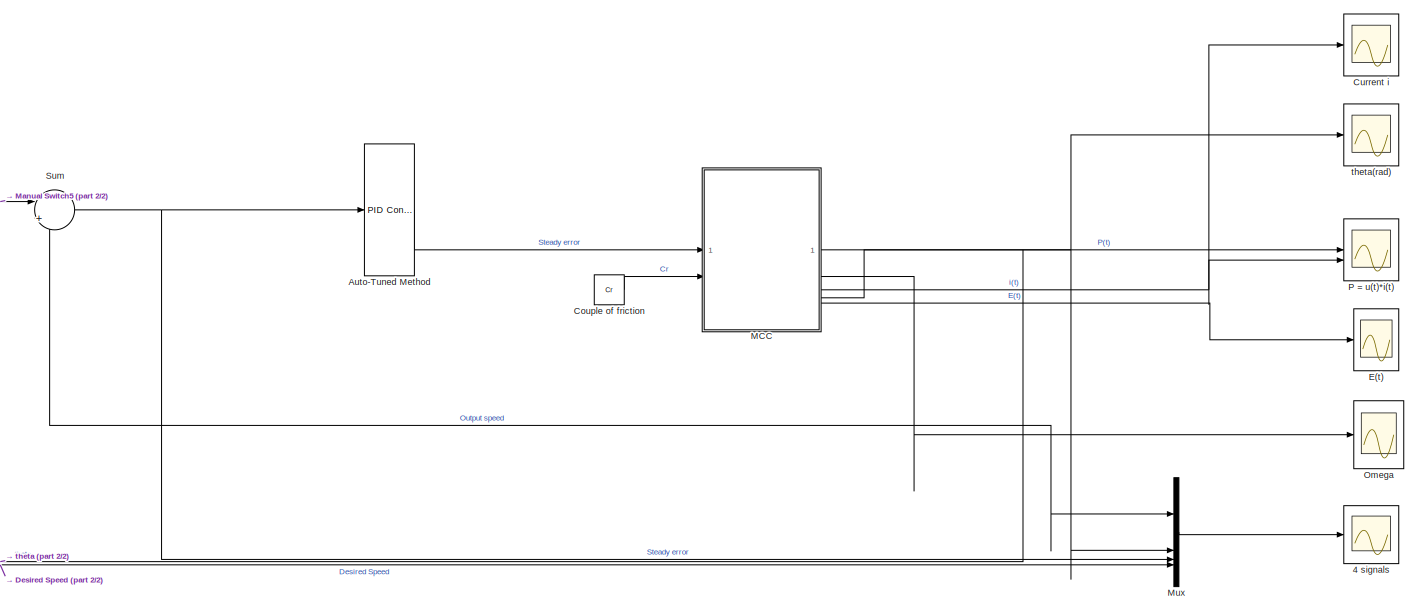
[diagram: root canvas - part 1/2, right side, full height]
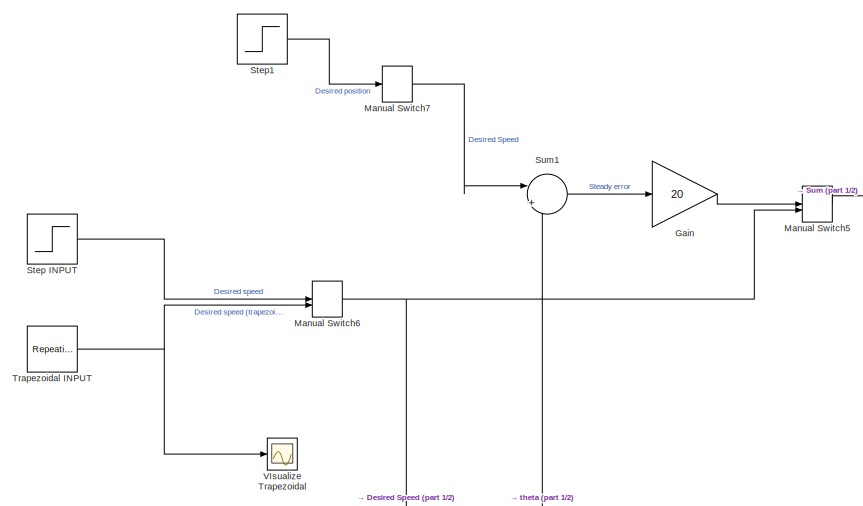
[diagram: root canvas - part 2/2, left side, full height]
MODEL mdl_764930c3db7c
KIND model
CONFIG AbsTol = auto
CONFIG EnableMultiTasking = off
CONFIG FixedStep = auto
CONFIG InitFcn = TP2
CONFIG MaxStep = auto
CONFIG MinStep = auto
CONFIG PreLoadFcn = J = 0.28;\nb = 8.5E-3;\nC = 0;\nCr = 0;\nK = 0.5093;\nKe = 0.5093;\nKt = 0.5093;\nKp = 100;\nR = 0.13;\nL = 1.6E-3;\nU = 0;\nE = 0;\ntheta = 0;
CONFIG RelTol = 1e-3
CONFIG SampleTimeConstraint = Unconstrained
CONFIG SolverName = ode23t
CONFIG StartTime = 0.0
CONFIG StopTime = 0.5
BLOCK [Scope] 4 signals
  Floating = off
  NumInputPorts = 1
  ScopeSpecificationString = Simulink.scopes.TimeScopeBlockCfg('CurrentConfiguration', extmgr.ConfigurationSet(extmgr.Configuration('Core','General UI',true),extmgr.Configuration('Core','Source UI',true),extmgr.Configuration('Sources','WiredSimulink',true,'DataLoggingVariableName','ScopeData1'),extmgr.Configuration('Visuals','Time Domain',true,'SerializedDisplays',{struct('MinYLimReal','-1.69126','MaxYLimReal','2.69126','YLab...<+1479ch>
BLOCK [Reference] Auto-Tuned Method   REF=slpidlib/PID Controller
  LibrarySourceBlock = simulink/Continuous/PID Controller
  SourceBlock = slpidlib/PID Controller
  SourceType = PID 1dof
BLOCK [Constant] Couple of friction
  Value = Cr
BLOCK [Scope] Current i
  Floating = off
  NumInputPorts = 1
  ScopeSpecificationString = Simulink.scopes.TimeScopeBlockCfg('CurrentConfiguration', extmgr.ConfigurationSet(extmgr.Configuration('Core','General UI',true),extmgr.Configuration('Core','Source UI',true),extmgr.Configuration('Sources','WiredSimulink',true,'DataLoggingVariableName','ScopeData4'),extmgr.Configuration('Visuals','Time Domain',true,'SerializedDisplays',{struct('MinYLimReal','-25.00000','MaxYLimReal','25.00000','YL...<+1442ch>
BLOCK [Scope] E(t)
  Floating = off
  NumInputPorts = 1
  ScopeSpecificationString = Simulink.scopes.TimeScopeBlockCfg('CurrentConfiguration', extmgr.ConfigurationSet(extmgr.Configuration('Core','General UI',true),extmgr.Configuration('Core','Source UI',true),extmgr.Configuration('Sources','WiredSimulink',true,'DataLoggingVariableName','ScopeData1'),extmgr.Configuration('Visuals','Time Domain',true,'SerializedDisplays',{struct('MinYLimReal','-0.27211','MaxYLimReal','2.44898','YLab...<+1417ch>
BLOCK [Gain] Gain
  Gain = 20
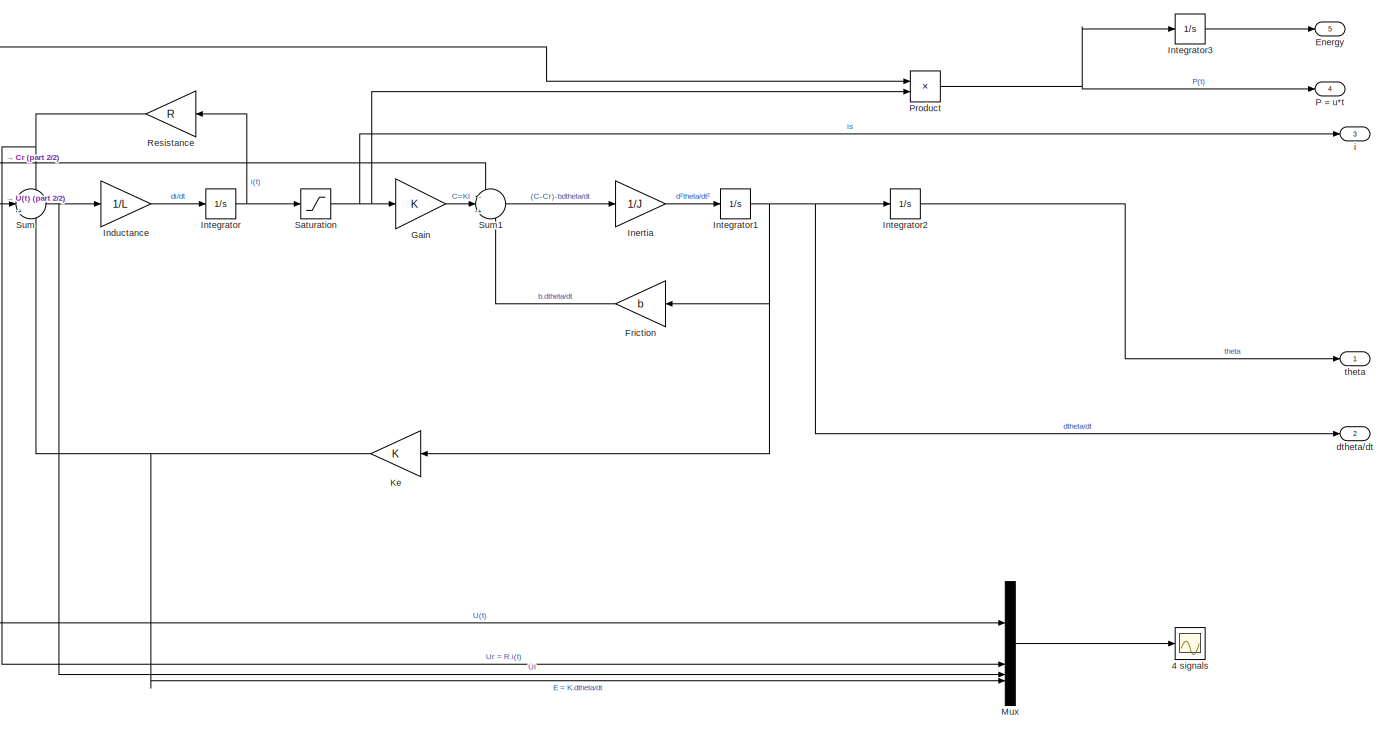
[diagram: MCC - part 1/2, most of the canvas]
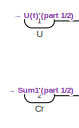
[diagram: MCC - part 2/2, middle left region]
BLOCK [SubSystem] MCC
BLOCK [Scope] MCC/4 signals
  Floating = off
  NumInputPorts = 1
  ScopeSpecificationString = Simulink.scopes.TimeScopeBlockCfg('CurrentConfiguration', extmgr.ConfigurationSet(extmgr.Configuration('Core','General UI',true),extmgr.Configuration('Core','Source UI',true),extmgr.Configuration('Sources','WiredSimulink',true,'DataLoggingVariableName','ScopeData2'),extmgr.Configuration('Visuals','Time Domain',true,'SerializedDisplays',{struct('MinYLimReal','-2.34595','MaxYLimReal','13.59399','YLa...<+1430ch>
BLOCK [Inport] MCC/Cr
  Port = 2
BLOCK [Outport] MCC/Energy
  Port = 5
BLOCK [Gain] MCC/Friction
  Gain = b
  NameLocation = top
BLOCK [Gain] MCC/Gain
  Gain = K
BLOCK [Gain] MCC/Inductance
  Gain = 1/L
BLOCK [Gain] MCC/Inertia
  Gain = 1/J
BLOCK [Integrator] MCC/Integrator
BLOCK [Integrator] MCC/Integrator1
BLOCK [Integrator] MCC/Integrator2
BLOCK [Integrator] MCC/Integrator3
BLOCK [Gain] MCC/Ke
  Gain = K
  NameLocation = top
BLOCK [Mux] MCC/Mux
  DisplayOption = bar
BLOCK [Outport] MCC/P = u*t
  Port = 4
BLOCK [Product] MCC/Product
BLOCK [Gain] MCC/Resistance
  Gain = R
  NameLocation = top
BLOCK [Saturate] MCC/Saturation
  LowerLimit = -20
  UpperLimit = 20
BLOCK [Sum] MCC/Sum
  Inputs = -|+|-
BLOCK [Sum] MCC/Sum1
  Inputs = -|+|-
BLOCK [Inport] MCC/U
BLOCK [Outport] MCC/dtheta//dt
  Port = 2
BLOCK [Outport] MCC/i
  Port = 3
BLOCK [Outport] MCC/theta
BLOCK [ManualSwitch] Manual Switch5
  CurrentSetting = 0
BLOCK [ManualSwitch] Manual Switch6
BLOCK [ManualSwitch] Manual Switch7
BLOCK [Mux] Mux
  DisplayOption = bar
BLOCK [Scope] Omega
  Floating = off
  NumInputPorts = 1
  ScopeSpecificationString = Simulink.scopes.TimeScopeBlockCfg('CurrentConfiguration', extmgr.ConfigurationSet(extmgr.Configuration('Core','General UI',true),extmgr.Configuration('Core','Source UI',true),extmgr.Configuration('Sources','WiredSimulink',true,'DataLoggingVariableName','ScopeData2'),extmgr.Configuration('Visuals','Time Domain',true,'SerializedDisplays',{struct('MinYLimReal','-0.13303','MaxYLimReal','1.19723','YLab...<+1396ch>
BLOCK [Scope] P = u(t)*i(t)
  Floating = off
  NumInputPorts = 2
  ScopeSpecificationString = Simulink.scopes.TimeScopeBlockCfg('CurrentConfiguration', extmgr.ConfigurationSet(extmgr.Configuration('Core','General UI',true),extmgr.Configuration('Core','Source UI',true),extmgr.Configuration('Sources','WiredSimulink',true,'DataLoggingVariableName','ScopeData6'),extmgr.Configuration('Visuals','Time Domain',true,'SerializedDisplays',{struct('MinYLimReal','-106.41859','MaxYLimReal','540.60715','...<+1456ch>
BLOCK [Step] Step INPUT
  SampleTime = 0
  Time = 0
BLOCK [Step] Step1
  SampleTime = 0
  Time = 0
BLOCK [Sum] Sum
  Inputs = |+-
BLOCK [Sum] Sum1
  Inputs = |+-
BLOCK [Reference] Trapezoidal INPUT  REF=simulink/Sources/Repeating
Sequence
  SourceBlock = simulink/Sources/Repeating\nSequence
  SourceType = Repeating table
BLOCK [Scope] VIsualize Trapezoidal
  Floating = off
  NumInputPorts = 1
  ScopeSpecificationString = Simulink.scopes.TimeScopeBlockCfg('CurrentConfiguration', extmgr.ConfigurationSet(extmgr.Configuration('Core','General UI',true),extmgr.Configuration('Core','Source UI',true),extmgr.Configuration('Sources','WiredSimulink',true,'DataLoggingVariableName','ScopeData5'),extmgr.Configuration('Visuals','Time Domain',true,'SerializedDisplays',{struct('MinYLimReal','-3.68997','MaxYLimReal','54.74929','YLa...<+1432ch>
BLOCK [Scope] theta(rad)
  Floating = off
  NumInputPorts = 1
  ScopeSpecificationString = Simulink.scopes.TimeScopeBlockCfg('CurrentConfiguration', extmgr.ConfigurationSet(extmgr.Configuration('Core','General UI',true),extmgr.Configuration('Core','Source UI',true),extmgr.Configuration('Sources','WiredSimulink',true),extmgr.Configuration('Visuals','Time Domain',true,'SerializedDisplays',{struct('MinYLimReal','-444.90997','MaxYLimReal','209.48332','YLabelReal','','MinYLimMag',' 0.00000',...<+1410ch>
LINE Auto-Tuned Method :1 -> MCC:1
LINE Couple of friction:1 -> MCC:2
LINE Gain:1 -> Manual Switch5:1
LINE MCC/Cr:1 -> MCC/Sum1:1
LINE MCC/Friction:1 -> MCC/Sum1:3
LINE MCC/Gain:1 -> MCC/Sum1:2
LINE MCC/Inductance:1 -> MCC/Integrator:1
LINE MCC/Inertia:1 -> MCC/Integrator1:1
NET MCC/Integrator1:1 -> MCC/Friction:1, MCC/Integrator2:1, MCC/Ke:1, MCC/dtheta//dt:1
LINE MCC/Integrator2:1 -> MCC/theta:1
LINE MCC/Integrator3:1 -> MCC/Energy:1
NET MCC/Integrator:1 -> MCC/Resistance:1, MCC/Saturation:1
NET MCC/Ke:1 -> MCC/Mux:4, MCC/Sum:3
LINE MCC/Mux:1 -> MCC/4 signals:1
NET MCC/Product:1 -> MCC/Integrator3:1, MCC/P = u*t:1
NET MCC/Resistance:1 -> MCC/Mux:2, MCC/Sum:1
NET MCC/Saturation:1 -> MCC/Gain:1, MCC/Product:2, MCC/i:1
LINE MCC/Sum1:1 -> MCC/Inertia:1
NET MCC/Sum:1 -> MCC/Inductance:1, MCC/Mux:3
NET MCC/U:1 -> MCC/Mux:1, MCC/Product:1, MCC/Sum:2
NET MCC:1 -> Mux:2, Sum1:2, theta(rad):1
NET MCC:2 -> Mux:1, Omega:1, Sum:2
NET MCC:3 -> Current i:1, P = u(t)*i(t):2
LINE MCC:4 -> P = u(t)*i(t):1
LINE MCC:5 -> E(t):1
LINE Manual Switch5:1 -> Sum:1
NET Manual Switch6:1 -> Manual Switch5:2, Mux:4
LINE Manual Switch7:1 -> Sum1:1
LINE Mux:1 -> 4 signals:1
LINE Step INPUT:1 -> Manual Switch6:1
LINE Step1:1 -> Manual Switch7:1
LINE Sum1:1 -> Gain:1
NET Sum:1 -> Auto-Tuned Method :1, Mux:3
NET Trapezoidal INPUT:1 -> Manual Switch6:2, VIsualize Trapezoidal:1
note: NET lines group one-source signal fan-out (src -> all destinations, sorted); 1:1 wires keep LINE
